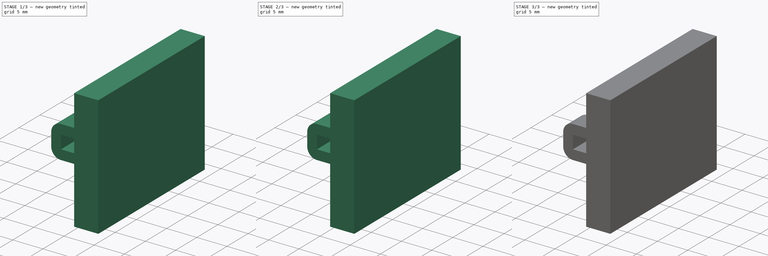
[diagram: build sequence overview — one tinted view per stage of 3, left to right]
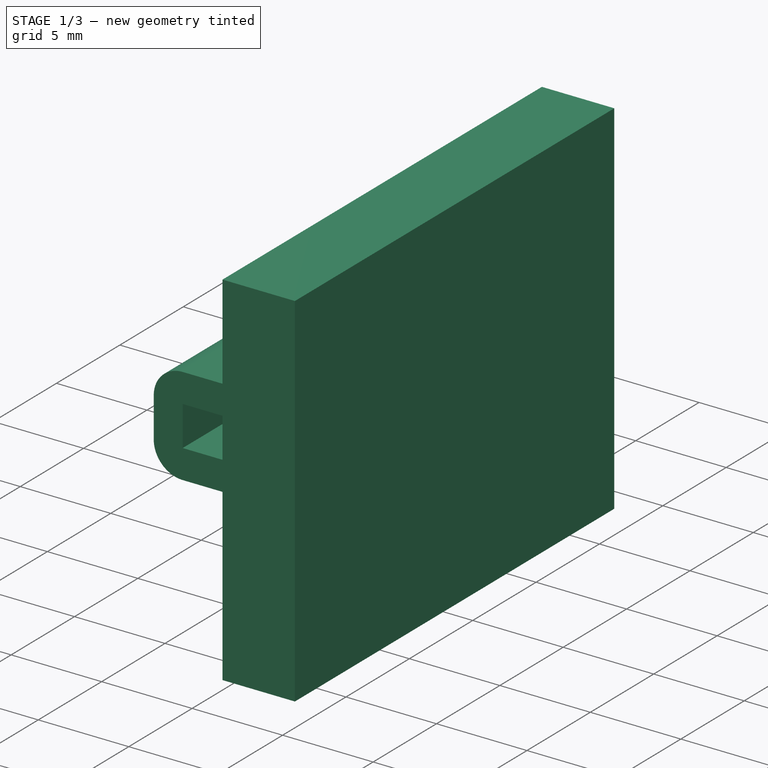
[diagram: stage 1 of 3 — iso view after this stage's code; geometry added in this stage tinted green]
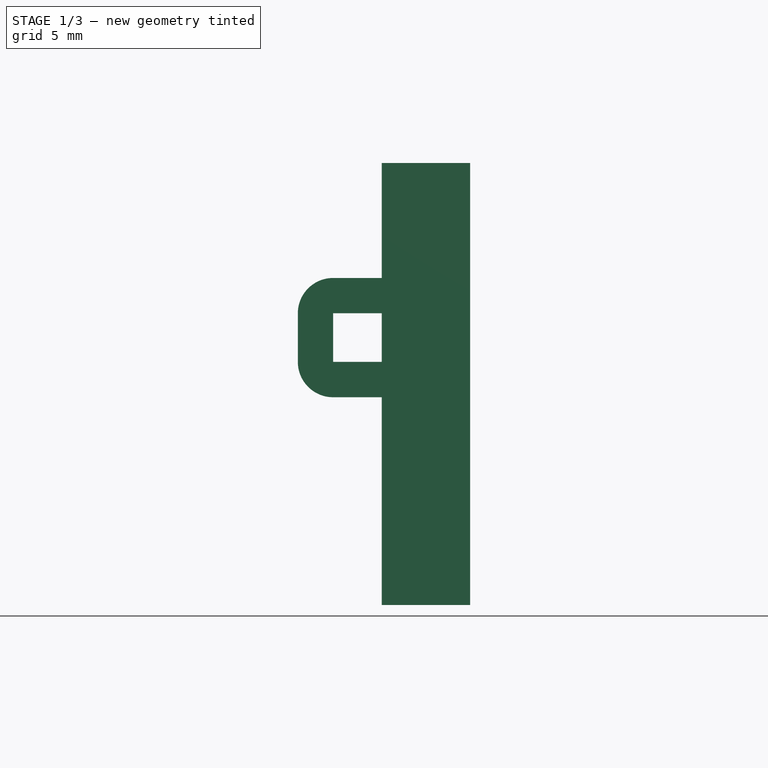
[diagram: stage 1 of 3 — front view after this stage's code; geometry added in this stage tinted green]
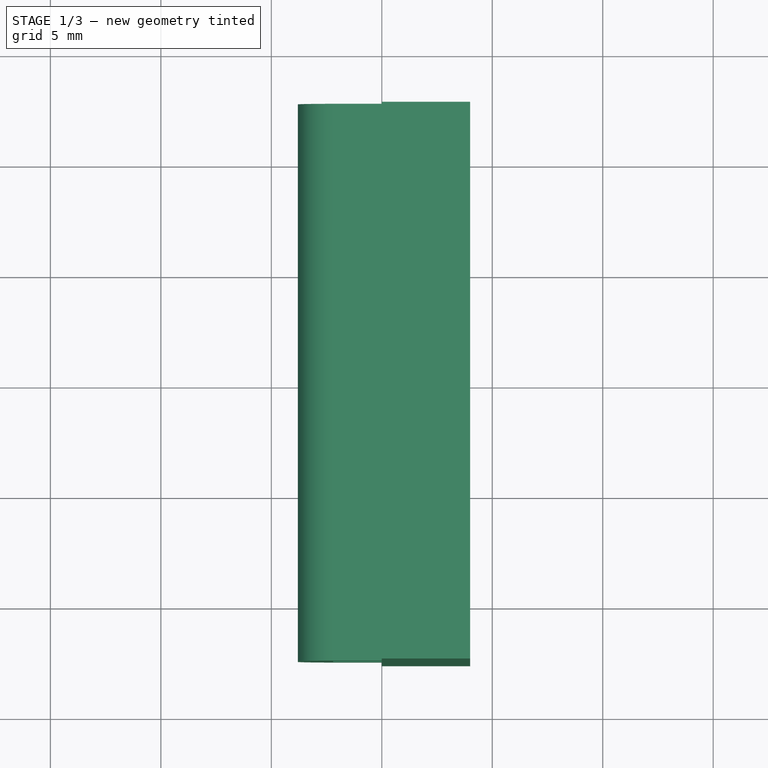
[diagram: stage 1 of 3 — top view after this stage's code; geometry added in this stage tinted green]
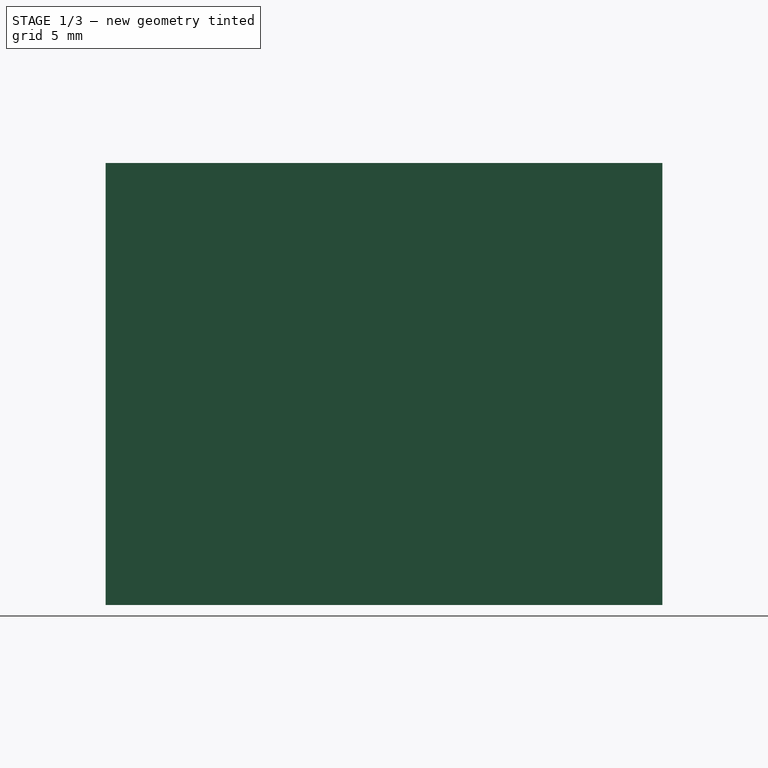
[diagram: stage 1 of 3 — right view after this stage's code; geometry added in this stage tinted green]
FCSTD DOCUMENT  (FreeCAD 1.0R39319 (Git))
Label: prove_dimensioni_senza led
License: All rights reserved
LicenseURL: https://en.wikipedia.org/wiki/All_rights_reserved
objects: Sketcher::SketchObject×3, Part::Extrusion×3, PartDesign::Body×1, Part::MultiFuse×1, Part::Cut×1
note: 12 computed .brp shape members not serialized (recipe doc carries the construction recipe); baked Part::Feature solids carry a one-line shape summary decoded from their .brp

FEATURE [Sketcher::SketchObject] Sketch  label="base"
  ArcFitTolerance = 1e-06
  AttachmentSupport = -> [XZ_Plane]
  FullyConstrained = true
  MakeInternals = false
  MapMode = 5
  Placement = pos=(0,0,0) rot=(1,0,0;1.5708rad)
  sketch-geometry (4):
    g0: LineSegment StartX=0 StartY=20 StartZ=0 EndX=0 EndY=0 EndZ=0
    g1: LineSegment StartX=0 StartY=0 StartZ=0 EndX=4 EndY=0 EndZ=0
    g2: LineSegment StartX=4 StartY=0 StartZ=0 EndX=4 EndY=20 EndZ=0
    g3: LineSegment StartX=4 StartY=20 StartZ=0 EndX=0 EndY=20 EndZ=0
  constraints (11):
    c: Coincident(g0,g1)
    c: Coincident(g1,g2)
    c: Coincident(g2,g3)
    c: Coincident(g3,g0)
    c: Vertical(g0)
    c: Vertical(g2)
    c: Horizontal(g1)
    c: Horizontal(g3)
    c: Distance(g0,g2) = 4
    c: Distance(g1,g3) = 20
    c: Coincident(g0,g-1)
FEATURE [Part::Extrusion] Extrude  label="Extrude BASE"
  Base = -> Sketch
  Dir = (0,-1,2e-16)
  DirMode = 2
  FaceMakerClass = Part::FaceMakerBullseye
  FaceMakerMode = 3
  LengthFwd = 25.2
  LengthRev = 0
  Solid = true
  Symmetric = true
FEATURE [Sketcher::SketchObject] Sketch006  label="fermo - step-down"
  ArcFitTolerance = 1e-06
  AttachmentSupport = -> [XZ_Plane]
  ExternalGeometry = -> [Sketch002]
  FullyConstrained = true
  MakeInternals = false
  MapMode = 5
  Placement = pos=(0,0,0) rot=(1,0,0;1.5708rad)
  sketch-geometry (12):
    g0: LineSegment StartX=-3.8 StartY=13.2 StartZ=0 EndX=-3.8 EndY=11 EndZ=0
    g1: LineSegment StartX=-2.2 StartY=9.4 StartZ=0 EndX=1.6 EndY=9.4 EndZ=0
    g2: LineSegment StartX=1.6 StartY=9.4 StartZ=0 EndX=1.6 EndY=14.8 EndZ=0
    g3: LineSegment StartX=1.6 StartY=14.8 StartZ=0 EndX=-2.2 EndY=14.8 EndZ=0
    g4: LineSegment StartX=-2.2 StartY=13.2 StartZ=0 EndX=-2.2 EndY=11 EndZ=0
    g5: LineSegment StartX=-2.2 StartY=11 StartZ=0 EndX=0 EndY=11 EndZ=0
    g6: LineSegment StartX=0 StartY=11 StartZ=0 EndX=0 EndY=13.2 EndZ=0
    g7: LineSegment StartX=0 StartY=13.2 StartZ=0 EndX=-2.2 EndY=13.2 EndZ=0
    g8: ArcOfCircle CenterX=-2.2 CenterY=13.2 CenterZ=0 NormalX=0 NormalY=0 NormalZ=1 AngleXU=0 Radius=1.6 StartAngle=1.5708 EndAngle=3.14159
    g9: GeomPoint [constr] X=-3.8 Y=14.8 Z=0
    g10: ArcOfCircle CenterX=-2.2 CenterY=11 CenterZ=0 NormalX=0 NormalY=0 NormalZ=1 AngleXU=0 Radius=1.6 StartAngle=3.14159 EndAngle=4.71239
    g11: GeomPoint [constr] X=-3.8 Y=9.4 Z=0
  constraints (31):
    c: Coincident(g1,g2)
    c: Coincident(g2,g3)
    c: Vertical(g0)
    c: Vertical(g2)
    c: Horizontal(g1)
    c: Horizontal(g3)
    c: Distance(g9,g2) = 5.4
    c: Distance(g11,g9) = 5.4
    c: Coincident(g4,g5)
    c: Coincident(g5,g6)
    c: Coincident(g6,g7)
    c: Coincident(g7,g4)
    c: Vertical(g4)
    c: Horizontal(g5)
    c: Horizontal(g7)
    c: Distance(g4,g6) = 2.2
    c: Distance(g5,g7) = 2.2
    c: DistanceY(g6,g2) = 1.6
    c: DistanceX(g6,g2) = 1.6
    c: PointOnObject(g9,g3)
    c: Tangent(g3,g8) = -1.5708
    c: Tangent(g0,g8) = -1.5708
    c: PointOnObject(g11,g1)
    c: PointOnObject(g11,g0)
    c: Tangent(g1,g10) = -1.5708
    c: Tangent(g0,g10) = -1.5708
    c: Equal(g8,g10)
    c: Coincident(g8,g4)
    c: Parallel(g-2,g6)
    c: PointOnObject(g6,g-2)
    c: Distance(g6,g-3) = 2.8
FEATURE [PartDesign::Body] Body  label="Corpo"
  AllowCompound = false
  Group = -> [Sketch,Sketch002,Sketch006]
  Origin = -> Origin
FEATURE [Part::Extrusion] Extrude006  label="Extrude006 - fermo - step-down"
  Base = -> Sketch006
  Dir = (0,-1,2e-16)
  DirMode = 2
  FaceMakerClass = Part::FaceMakerBullseye
  FaceMakerMode = 3
  LengthFwd = 25.2
  LengthRev = 0
  Solid = true
  Symmetric = true
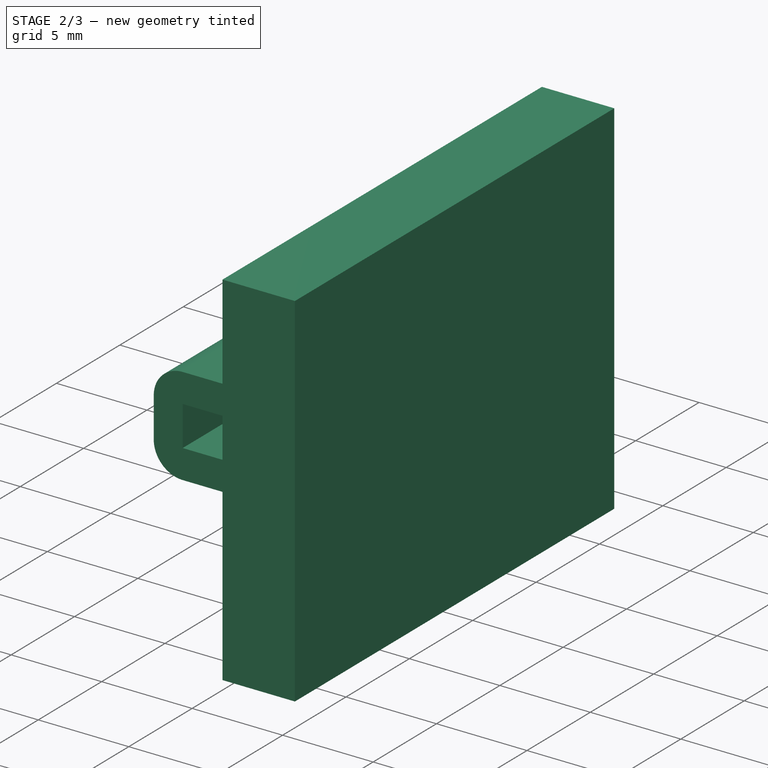
[diagram: stage 2 of 3 — iso view after this stage's code; geometry added in this stage tinted green]
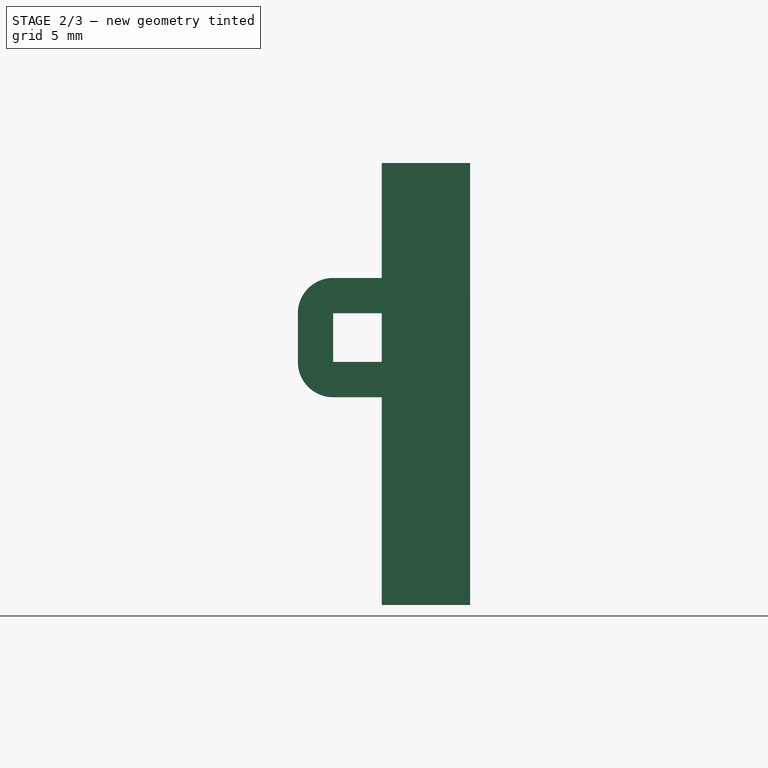
[diagram: stage 2 of 3 — front view after this stage's code; geometry added in this stage tinted green]
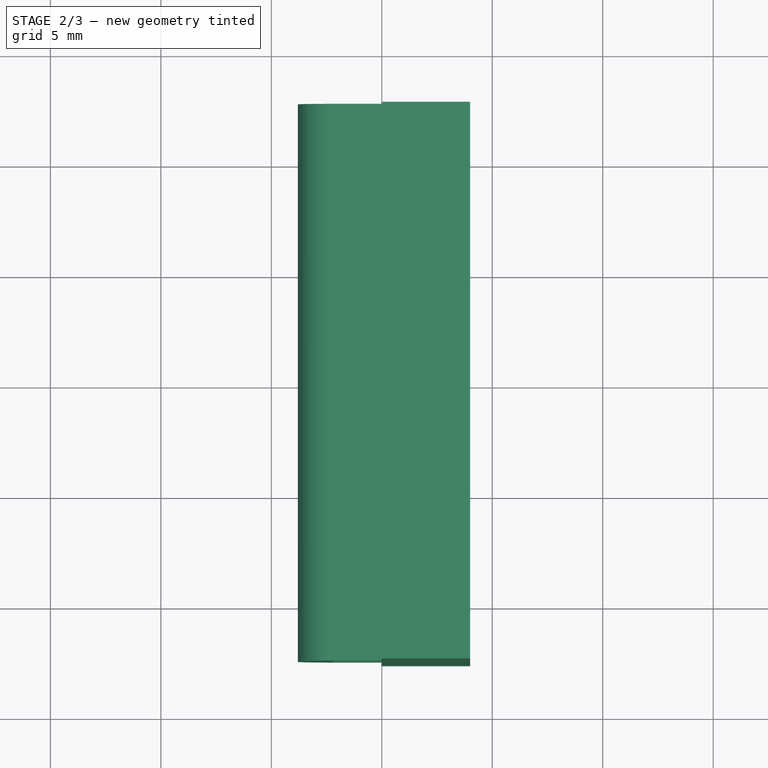
[diagram: stage 2 of 3 — top view after this stage's code; geometry added in this stage tinted green]
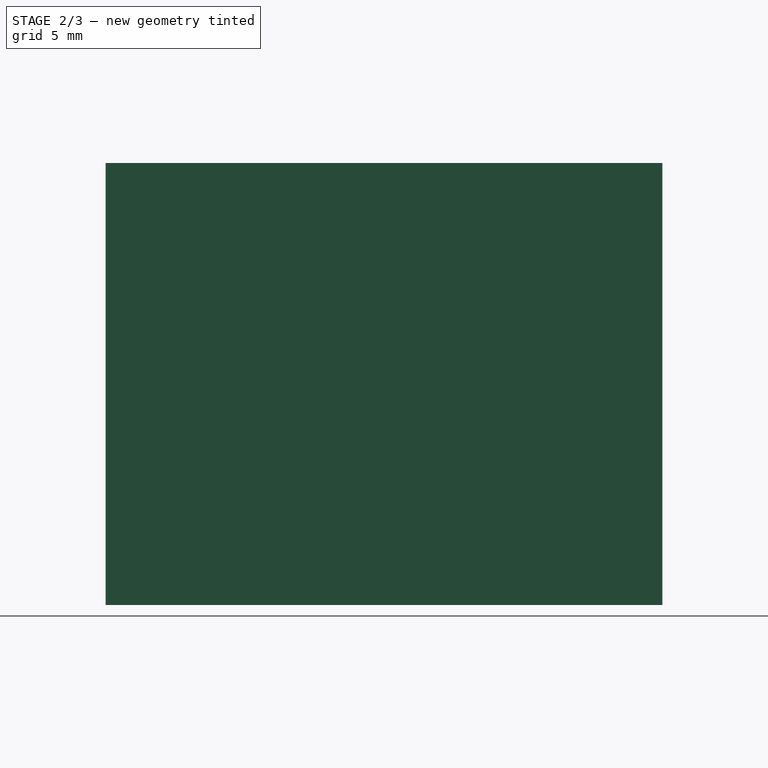
[diagram: stage 2 of 3 — right view after this stage's code; geometry added in this stage tinted green]
FEATURE [Part::MultiFuse] Fusion
  Refine = true
  Shapes = -> [Extrude,Extrude006]
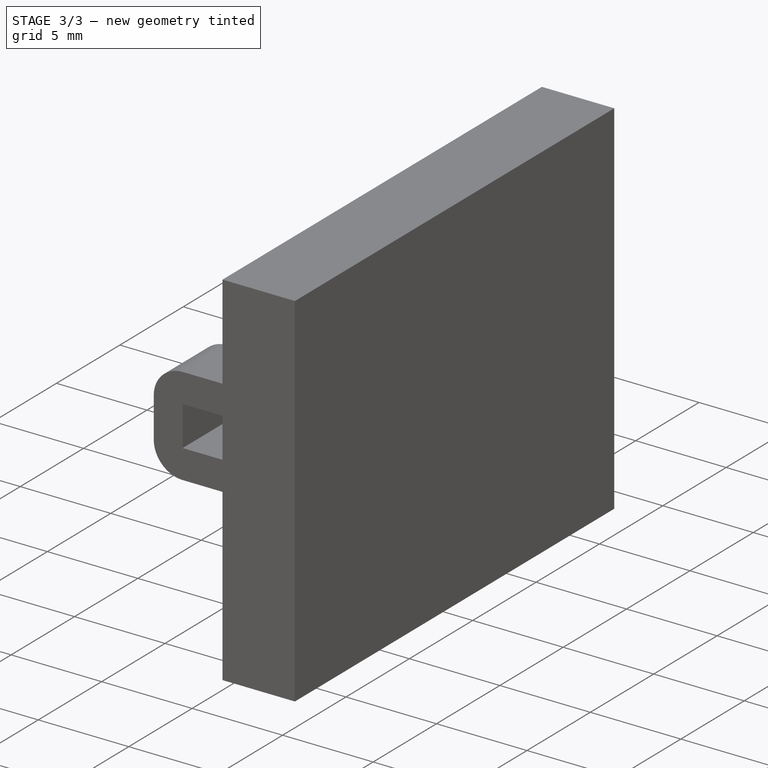
[diagram: stage 3 of 3 — iso view after this stage's code; geometry added in this stage tinted green]
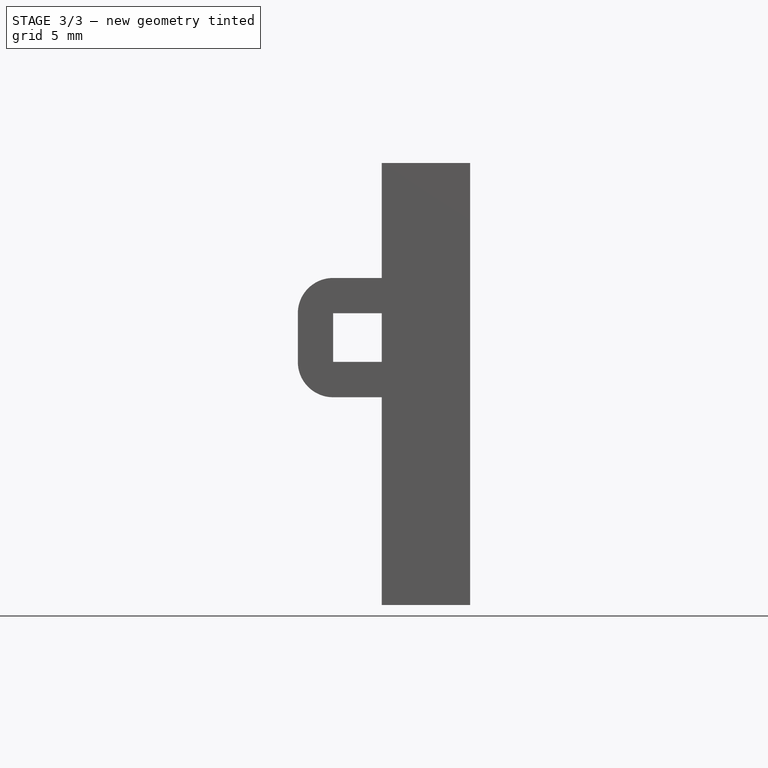
[diagram: stage 3 of 3 — front view after this stage's code; geometry added in this stage tinted green]
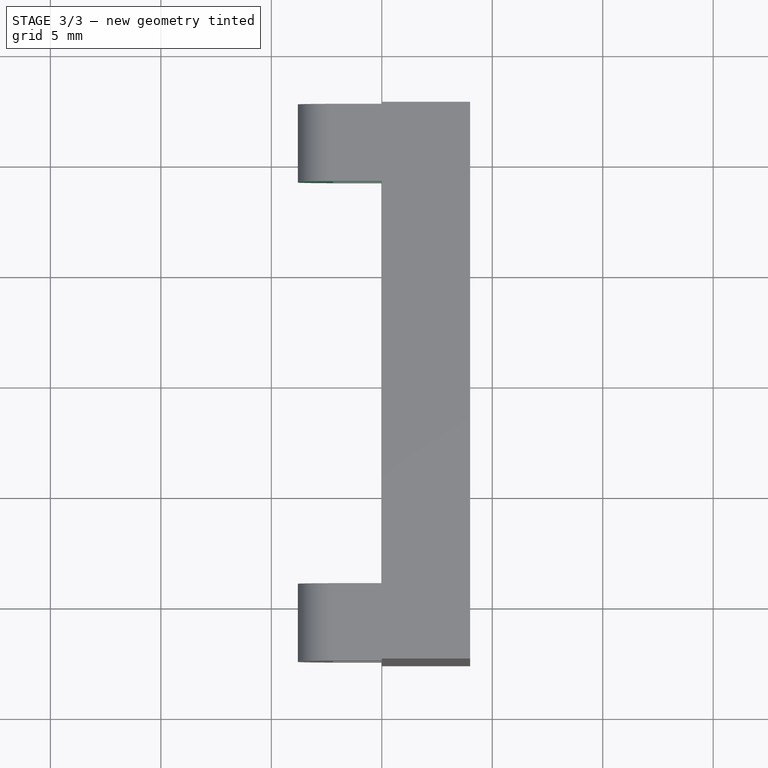
[diagram: stage 3 of 3 — top view after this stage's code; geometry added in this stage tinted green]
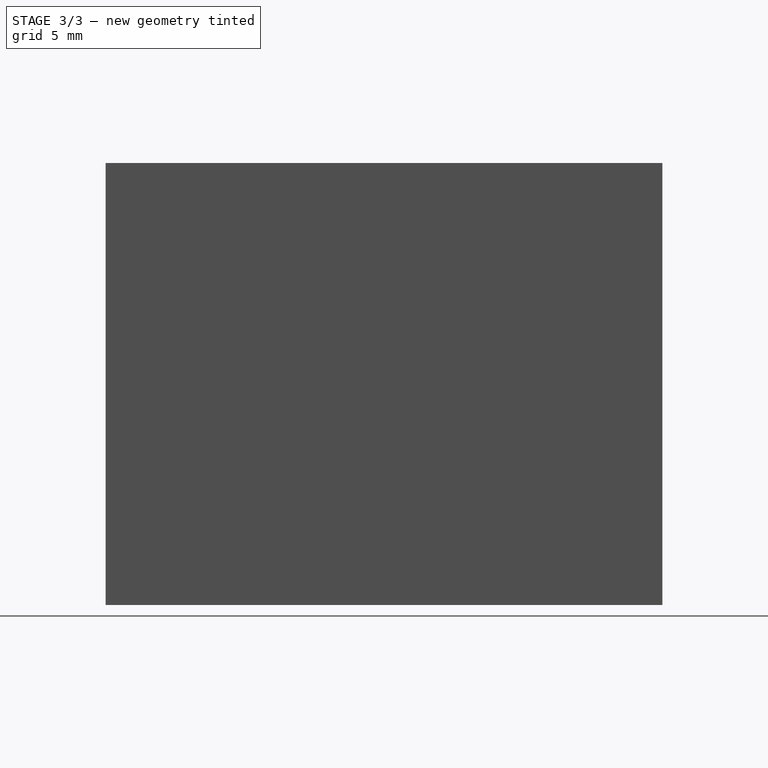
[diagram: stage 3 of 3 — right view after this stage's code; geometry added in this stage tinted green]
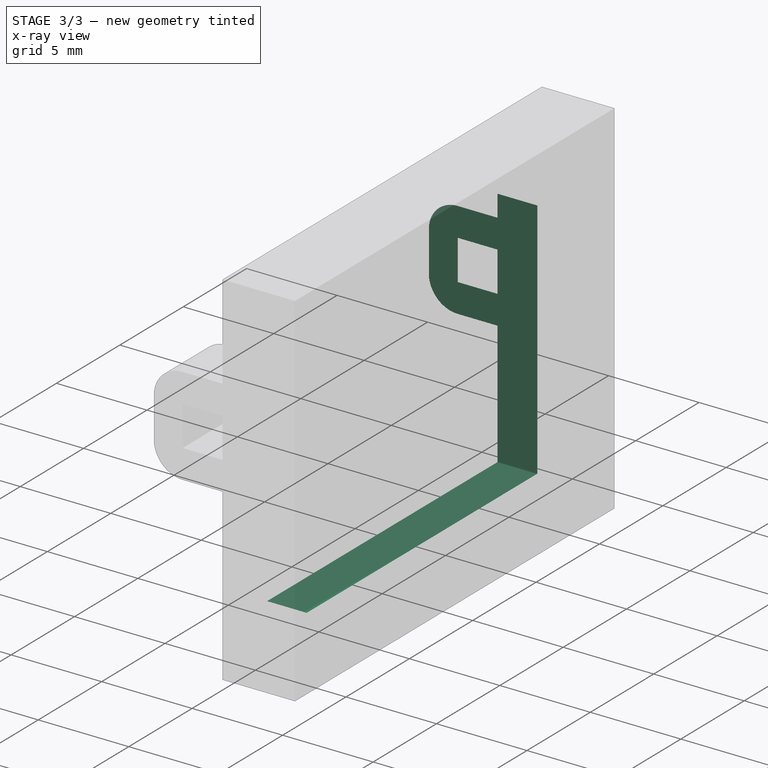
[diagram: stage 3 of 3 — x-ray composite at the iso view; earlier geometry ghosted, this stage's added geometry solid]
FEATURE [Sketcher::SketchObject] Sketch002  label="step -down"
  ArcFitTolerance = 1e-06
  AttachmentSupport = -> [XZ_Plane]
  ExternalGeometry = -> [Sketch]
  FullyConstrained = true
  MakeInternals = false
  MapMode = 5
  Placement = pos=(0,0,0) rot=(1,0,0;1.5708rad)
  sketch-geometry (7):
    g0: LineSegment [constr] StartX=0 StartY=16 StartZ=0 EndX=1.8545e-12 EndY=2.6 EndZ=0
    g1: LineSegment StartX=1.8545e-12 StartY=2.6 StartZ=0 EndX=2.2 EndY=2.6 EndZ=0
    g2: LineSegment StartX=2.2 StartY=2.6 StartZ=0 EndX=2.2 EndY=16 EndZ=0
    g3: LineSegment StartX=2.2 StartY=16 StartZ=0 EndX=0 EndY=16 EndZ=0
    g4: LineSegment StartX=0 StartY=16 StartZ=0 EndX=-3.8 EndY=16 EndZ=0
    g5: LineSegment StartX=-3.8 StartY=16 StartZ=0 EndX=-3.8 EndY=2.6 EndZ=0
    g6: LineSegment StartX=-3.8 StartY=2.6 StartZ=0 EndX=1.8545e-12 EndY=2.6 EndZ=0
  constraints (19):
    c: Coincident(g0,g1)
    c: Coincident(g1,g2)
    c: Coincident(g2,g3)
    c: Coincident(g3,g0)
    c: Vertical(g2)
    c: Horizontal(g1)
    c: Horizontal(g3)
    c: Distance(g0,g2) = 2.2
    c: Distance(g1,g3) = 13.4
    c: DistanceY(g2,g-3) = 4
    c: Tangent(g0,g-3)
    c: Coincident(g4,g0)
    c: Horizontal(g4)
    c: DistanceX(g4,g4) = 3.8
    c: Coincident(g5,g4)
    c: Vertical(g5)
    c: Equal(g5,g2)
    c: Coincident(g6,g5)
    c: Coincident(g6,g0)
FEATURE [Part::Extrusion] Extrude002  label="Extrude002 - step -down"
  Base = -> Sketch002
  Dir = (0,-1,2e-16)
  DirMode = 2
  FaceMakerClass = Part::FaceMakerBullseye
  FaceMakerMode = 3
  LengthFwd = 18.2
  LengthRev = 0
  Solid = true
  Symmetric = true
FEATURE [Part::Cut] Cut
  Base = -> Fusion
  Refine = true
  Tool = -> Extrude002
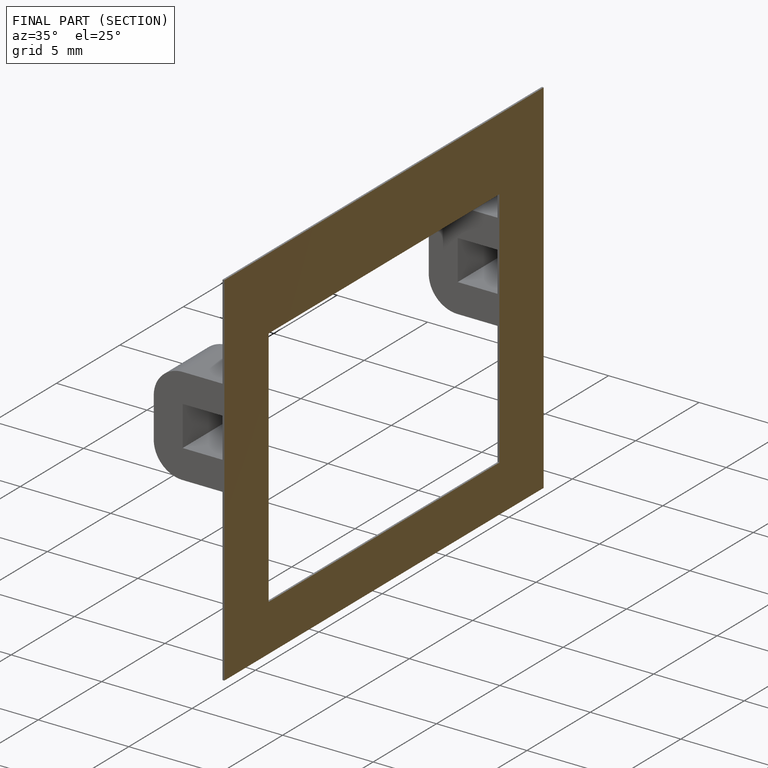
[diagram: finished part — half-section view (interior)]
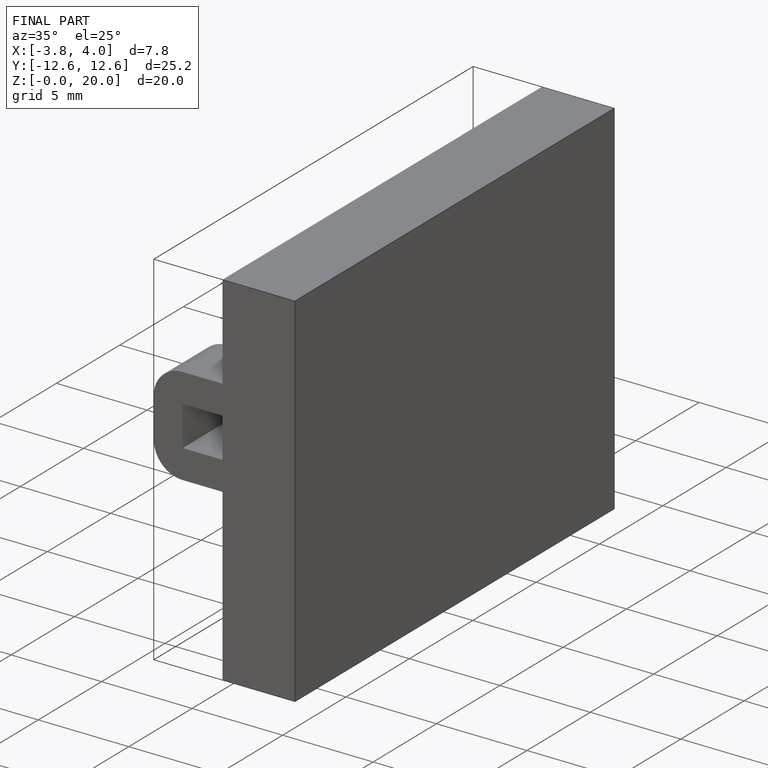
[diagram: finished part — iso view with bounding-box wireframe]
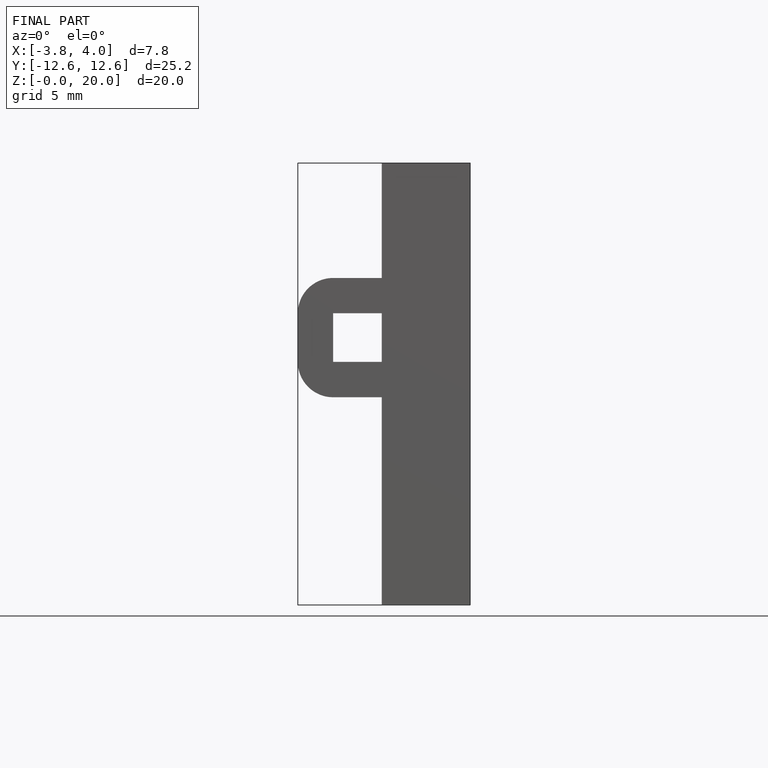
[diagram: finished part — front view with bounding-box wireframe]
